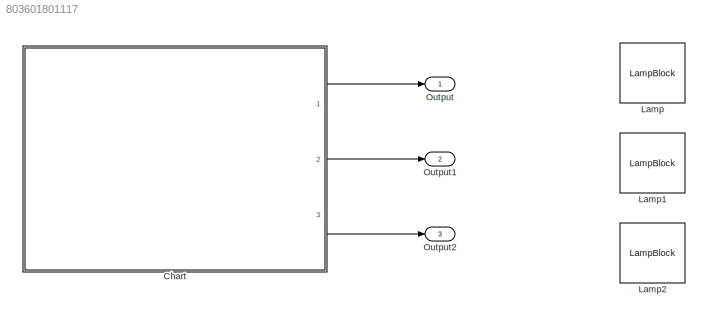
MODEL slx_803601801117
KIND model
CONFIG AbsTol = auto
CONFIG EnableMultiTasking = off
CONFIG FixedStep = auto
CONFIG MaxStep = auto
CONFIG MinStep = auto
CONFIG RelTol = 1e-3
CONFIG SampleTimeConstraint = Unconstrained
CONFIG SolverName = VariableStepAuto
CONFIG StartTime = 0.0
CONFIG StopTime = 10.0
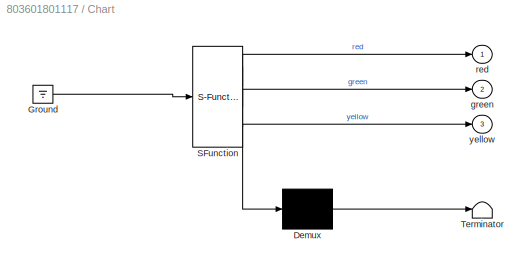
BLOCK [SubSystem] Chart
  ErrorFcn = Stateflow.Translate.translate
  PermitHierarchicalResolution = ExplicitOnly
  Ports = [0, 3]
  RequestExecContextInheritance = off
  SFBlockType = Chart
  TreatAsAtomicUnit = on
BLOCK [Demux] Chart/ Demux 
  Outputs = 1
  Ports = [1, 1]
BLOCK [Ground] Chart/ Ground 
BLOCK [S-Function] Chart/ SFunction 
  EnableBusSupport = on
  FunctionName = sf_sfun
  PortCounts = [1 4]
  Ports = [1, 4]
  SFcnIsStateOwnerBlock = off
  SFunctionDeploymentMode = off
  Tag = Stateflow S-Function 3
BLOCK [Terminator] Chart/ Terminator 
BLOCK [Outport] Chart/green
  Port = 2
BLOCK [Outport] Chart/red
BLOCK [Outport] Chart/yellow
  Port = 3
BLOCK [LampBlock] Lamp
  LabelPosition = Hide
BLOCK [LampBlock] Lamp1
  LabelPosition = Hide
BLOCK [LampBlock] Lamp2
  LabelPosition = Hide
BLOCK [Outport] Output
BLOCK [Outport] Output1
  Port = 2
BLOCK [Outport] Output2
  Port = 3
LINE Chart:1 -> Output:1
LINE Chart:2 -> Output1:1
LINE Chart:3 -> Output2:1
CHART Chart states=7 transitions=7
  STATE_LABEL 'TrafficLight\nen:\nred = 0;\nyellow = 0;\ngreen = 0;\ncount = 0;\n'
  STATE_LABEL 'Red\n\ndu:\nred = 1;\n\nex:\nred = 0;\n'
  STATE_LABEL 'Yellow\n\ndu:\nyellow = 1;\n\nex:\nyellow = 0;'
  STATE_LABEL 'Green\n\ndu:\ngreen = 1;\n\nex:\ngreen = 0'
  STATE_LABEL '[count == 1]'
  STATE_LABEL '[count == 1]'
  STATE_LABEL '[count == 1]'
  STATE_LABEL 'Red\n\ndu:\nred = 1;\n\nex:\nred = 0;\n'
  STATE_LABEL 'Yellow\n\ndu:\nyellow = 1;\n\nex:\nyellow = 0;'
  STATE_LABEL 'Green\n\ndu:\ngreen = 1;\n\nex:\ngreen = 0'
  STATE_LABEL 'Counter'
  STATE_LABEL 'init\nen:\ncount = 0;'
  STATE_LABEL 'Count\n\nen:\ncount = 1;\n\ndu:\ncount = 0;\n\n'
  STATE_LABEL 'after(3,tick)'
  STATE_LABEL 'after(3, tick)'
  STATE_LABEL 'init\nen:\ncount = 0;'
  STATE_LABEL 'Count\n\nen:\ncount = 1;\n\ndu:\ncount = 0;\n\n'
CHART  states=0 transitions=0
